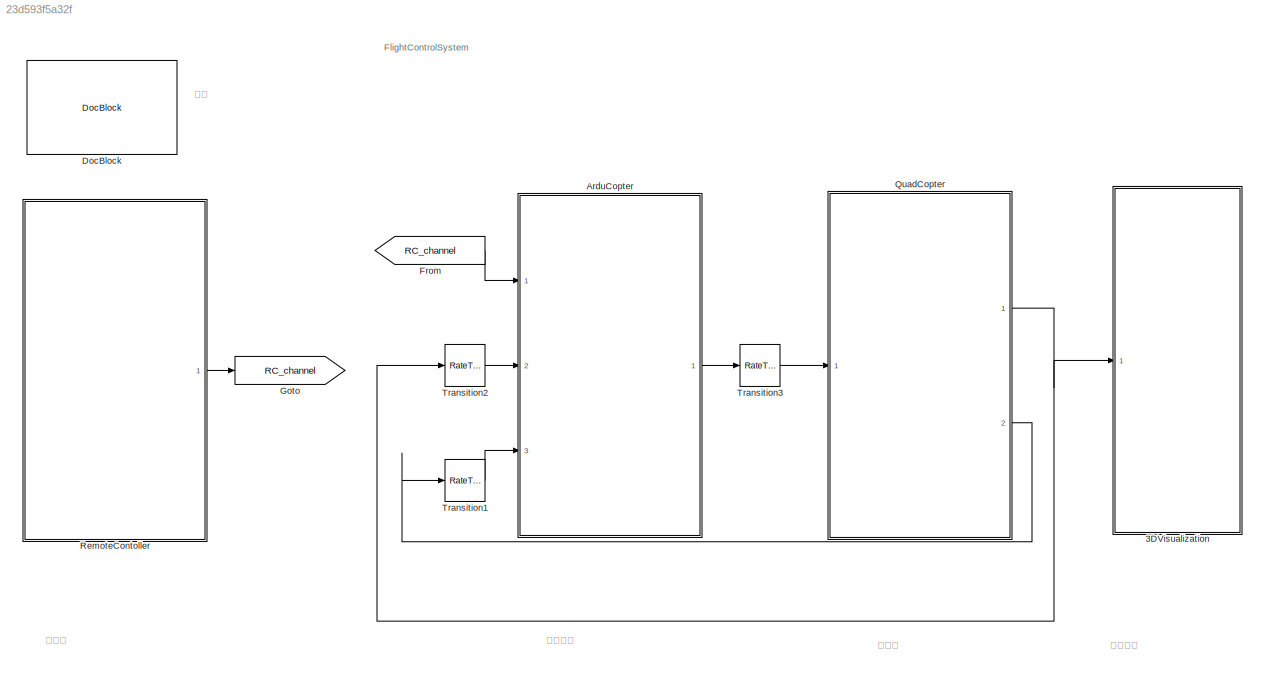
MODEL slx_23d593f5a32f
KIND model
CONFIG AbsTol = auto
CONFIG EnableMultiTasking = on
CONFIG FixedStep = 0.0025
CONFIG InitFcn = %load QuadCopterParameters\n
CONFIG MaxStep = auto
CONFIG MinStep = auto
CONFIG RelTol = 1e-3
CONFIG SampleTimeConstraint = Unconstrained
CONFIG Solver = ode23t
CONFIG SolverName = ode23t
CONFIG StartTime = 0.0
CONFIG StopTime = 10
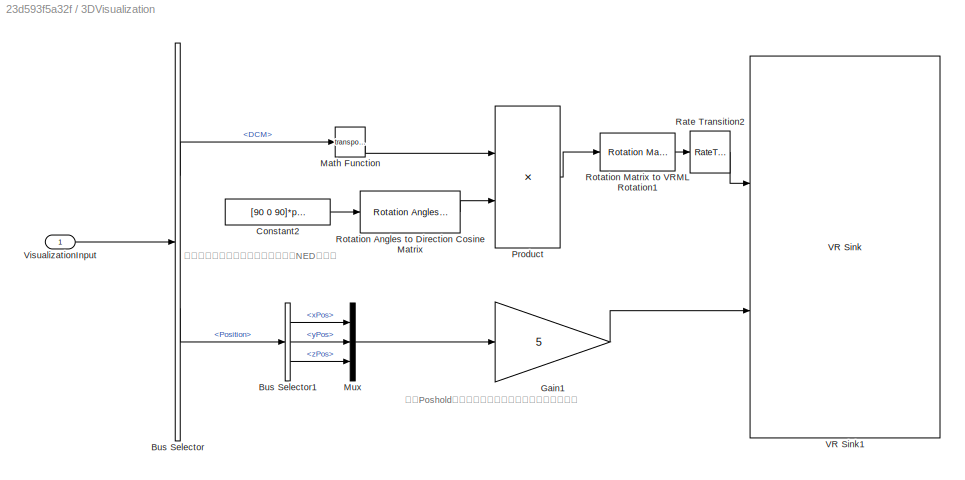
BLOCK [SubSystem] 3DVisualization
  Ports = [1]
  RequestExecContextInheritance = off
  TreatAsAtomicUnit = on
  Variant = off
BLOCK [BusSelector] 3DVisualization/Bus Selector
  OutputSignals = NEDState.Attitude.DCM,NEDState.Position
  Ports = [1, 2]
BLOCK [BusSelector] 3DVisualization/Bus Selector1
  OutputSignals = xPos,yPos,zPos
  Ports = [1, 3]
BLOCK [Constant] 3DVisualization/Constant2
  Value = [90 0 90]*pi/180
BLOCK [Gain] 3DVisualization/Gain1
  Gain = 5
  OutDataTypeStr = Inherit: Inherit via internal rule
  ParamDataTypeStr = Inherit: Inherit via internal rule
  SaturateOnIntegerOverflow = off
BLOCK [Math] 3DVisualization/Math Function
  Operator = transpose
  Ports = [1, 1]
BLOCK [Mux] 3DVisualization/Mux
  DisplayOption = bar
  Inputs = 3
  Ports = [3, 1]
BLOCK [Product] 3DVisualization/Product
  InputSameDT = off
  Multiplication = Matrix(*)
  OutDataTypeStr = Inherit: Inherit via internal rule
  Ports = [2, 1]
  RndMeth = Floor
  SaturateOnIntegerOverflow = off
BLOCK [RateTransition] 3DVisualization/Rate Transition2
  Commented = through
BLOCK [Reference] 3DVisualization/Rotation Angles to Direction Cosine Matrix  REF=aerolibtransform2/Rotation Angles to
Direction Cosine Matrix
  AttributesFormatString = Rotation Order: %<rotationOrder>
  Ports = [1, 1]
  SourceBlock = aerolibtransform2/Rotation Angles to\nDirection Cosine Matrix
  SourceType = Ang2DCM
BLOCK [Reference] 3DVisualization/Rotation Matrix to VRML Rotation1  REF=vrlib/Utilities/Rotation Matrix
to VRML Rotation
  Ports = [1, 1]
  SourceBlock = vrlib/Utilities/Rotation Matrix\nto VRML Rotation
  SourceType = Rotation Matrix to VRML Rotation
BLOCK [Reference] 3DVisualization/VR Sink1  REF=vrlib/VR Sink
  InstantiateOnLoad = on
  Ports = [2]
  SourceBlock = vrlib/VR Sink
  SourceType = Virtual Reality Sink
BLOCK [Inport] 3DVisualization/VisualizationInput
  IconDisplay = Port number
BLOCK [ModelReference] ArduCopter
  ModelNameDialog = ArduCopter
  ModelReferenceVersion = 1.207
  Ports = [3, 1]
  Variant = off
BLOCK [Reference] DocBlock  REF=simulink/Model-Wide
Utilities/DocBlock
  Ports = []
  SourceBlock = simulink/Model-Wide\nUtilities/DocBlock
  SourceType = DocBlock
  UserDataPersistent = on
BLOCK [From] From
  GotoTag = RC_channel
  TagVisibility = global
BLOCK [Goto] Goto
  GotoTag = RC_channel
  TagVisibility = global
BLOCK [ModelReference] QuadCopter
  ModelNameDialog = QuadCopter
  ModelReferenceVersion = 1.202
  Ports = [1, 2]
  Variant = off
BLOCK [ModelReference] RemoteContoller
  ModelNameDialog = RemoteController
  ModelReferenceVersion = 1.95
  Ports = [0, 1]
  Variant = off
BLOCK [RateTransition] Transition1
  OutPortSampleTime = 0.0025
BLOCK [RateTransition] Transition2
  OutPortSampleTime = 0.0025
BLOCK [RateTransition] Transition3
  OutPortSampleTime = 0
ANNOTATION (root): 遥控器
ANNOTATION (root): 飞控算法
ANNOTATION (root): 飞行器
ANNOTATION (root): 飞行演示
ANNOTATION (root): FlightControlSystem
ANNOTATION (root): 说明
ANNOTATION 3DVisualization: 仿真Poshold模式时，可以将位置信息放大，方便观察
ANNOTATION 3DVisualization: 将大地的空间坐标旋转，得到现有的NED坐标系
LINE 3DVisualization/Bus Selector1:1 -> 3DVisualization/Mux:1
LINE 3DVisualization/Bus Selector1:2 -> 3DVisualization/Mux:2
LINE 3DVisualization/Bus Selector1:3 -> 3DVisualization/Mux:3
LINE 3DVisualization/Bus Selector:1 -> 3DVisualization/Math Function:1
LINE 3DVisualization/Bus Selector:2 -> 3DVisualization/Bus Selector1:1
LINE 3DVisualization/Constant2:1 -> 3DVisualization/Rotation Angles to Direction Cosine Matrix:1
LINE 3DVisualization/Gain1:1 -> 3DVisualization/VR Sink1:2
LINE 3DVisualization/Math Function:1 -> 3DVisualization/Product:1
LINE 3DVisualization/Mux:1 -> 3DVisualization/Gain1:1
LINE 3DVisualization/Product:1 -> 3DVisualization/Rotation Matrix to VRML Rotation1:1
LINE 3DVisualization/Rate Transition2:1 -> 3DVisualization/VR Sink1:1
LINE 3DVisualization/Rotation Angles to Direction Cosine Matrix:1 -> 3DVisualization/Product:2
LINE 3DVisualization/Rotation Matrix to VRML Rotation1:1 -> 3DVisualization/Rate Transition2:1
LINE 3DVisualization/VisualizationInput:1 -> 3DVisualization/Bus Selector:1
LINE ArduCopter:1 -> Transition3:1
LINE From:1 -> ArduCopter:1
NET QuadCopter:1 -> 3DVisualization:1, Transition2:1
LINE QuadCopter:2 -> Transition1:1
LINE RemoteContoller:1 -> Goto:1
LINE Transition1:1 -> ArduCopter:3
LINE Transition2:1 -> ArduCopter:2
LINE Transition3:1 -> QuadCopter:1
note: NET lines group one-source signal fan-out (src -> all destinations, sorted); 1:1 wires keep LINE
